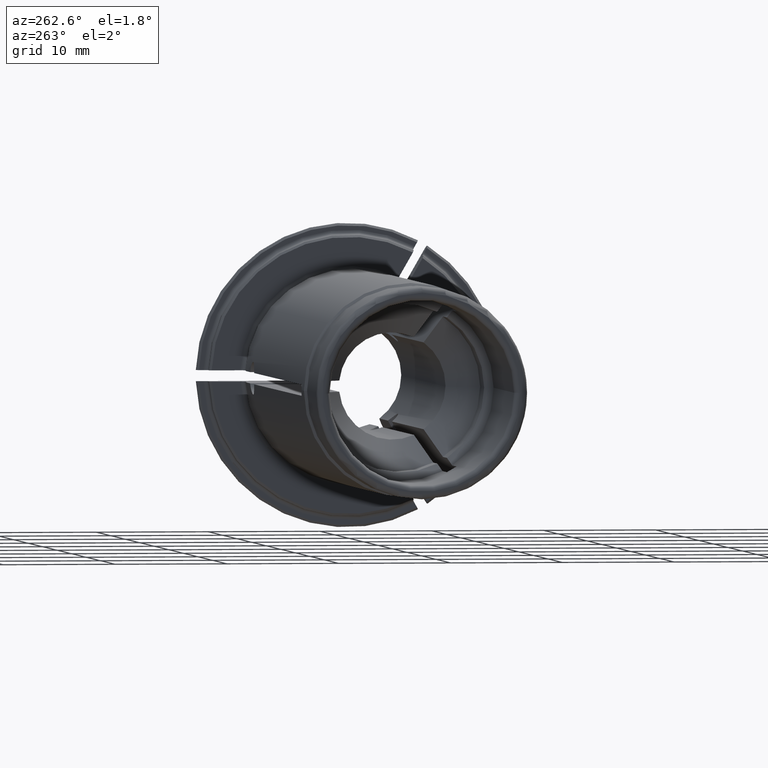
[diagram: clean part render]
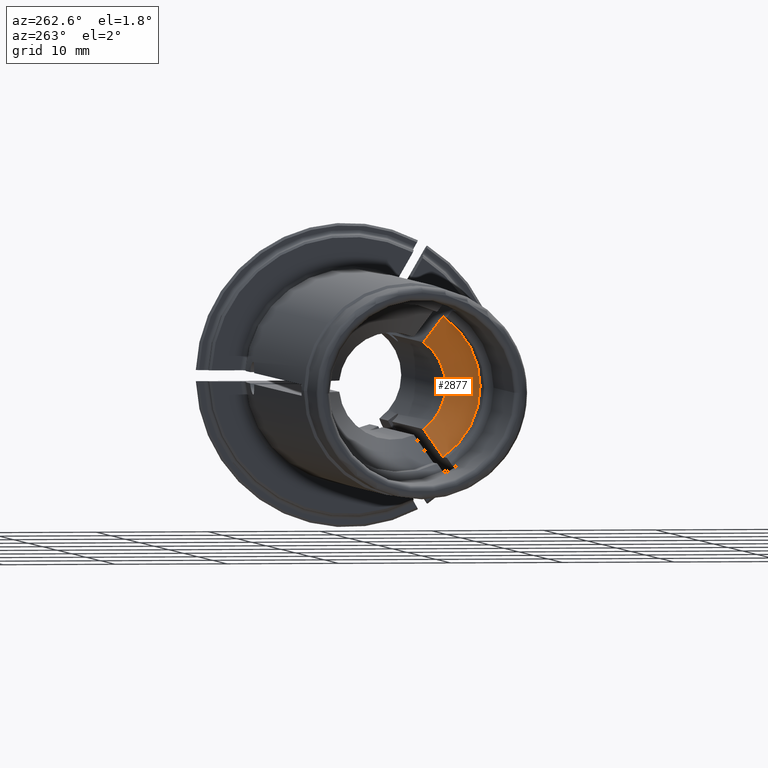
[diagram: same view with one face highlighted and labeled with its STEP entity id]
A machine part, auxiliary view. The second image highlights one B-rep face of the part: STEP entity #2877.
In plain terms, the highlighted conical surface has half-angle 45 deg.
Its self-contained STEP definition (entity closure, byte-faithful):
#186=CARTESIAN_POINT('',(-2.97625E1,0.E0,0.E0));
#187=DIRECTION('',(1.E0,0.E0,0.E0));
#188=DIRECTION('',(0.E0,-5.881581059140E-1,8.087459690457E-1));
#189=AXIS2_PLACEMENT_3D('',#186,#187,#188);
#1187=CARTESIAN_POINT('',(-3.25E1,-4.174670088666E0,-6.230740698408E0));
#1188=CARTESIAN_POINT('',(-3.217955302822E1,-4.014089359332E0,
-5.952606716485E0));
#1189=CARTESIAN_POINT('',(-3.154946335195E1,-3.698251371894E0,
-5.405559275283E0));
#1190=CARTESIAN_POINT('',(-3.063609465032E1,-3.240041514220E0,
-4.611916521262E0));
#1191=CARTESIAN_POINT('',(-3.004995493156E1,-2.945629153580E0,
-4.101979354256E0));
#1192=CARTESIAN_POINT('',(-2.97625E1,-2.801102979415E0,-3.851652677580E0));
#1194=CARTESIAN_POINT('',(-2.97625E1,-2.801102979415E0,3.851652677580E0));
#1195=CARTESIAN_POINT('',(-3.004994705004E1,-2.945625190923E0,
4.101972490733E0));
#1196=CARTESIAN_POINT('',(-3.063607624281E1,-3.240032273604E0,
4.611900516045E0));
#1197=CARTESIAN_POINT('',(-3.154944467411E1,-3.698242007344E0,
5.405543055405E0));
#1198=CARTESIAN_POINT('',(-3.217954502007E1,-4.014085346331E0,
5.952599765763E0));
#1199=CARTESIAN_POINT('',(-3.25E1,-4.174670088666E0,6.230740698408E0));
#1232=CARTESIAN_POINT('',(-3.25E1,0.E0,0.E0));
#1233=DIRECTION('',(-1.E0,0.E0,0.E0));
#1234=DIRECTION('',(0.E0,-5.566226784888E-1,-8.307654264544E-1));
#1235=AXIS2_PLACEMENT_3D('',#1232,#1233,#1234);
#1740=VERTEX_POINT('',#1194);
#1741=VERTEX_POINT('',#1199);
#1832=VERTEX_POINT('',#1187);
#1833=VERTEX_POINT('',#1192);
#2864=CARTESIAN_POINT('',(-3.113125E1,0.E0,0.E0));
#2865=DIRECTION('',(-1.E0,0.E0,0.E0));
#2866=DIRECTION('',(0.E0,1.E0,0.E0));
#2867=AXIS2_PLACEMENT_3D('',#2864,#2865,#2866);
#2868=CONICAL_SURFACE('',#2867,6.13125E0,4.5E1);
#2869=ORIENTED_EDGE('',*,*,#2826,.T.);
#2870=ORIENTED_EDGE('',*,*,#2041,.F.);
#2872=ORIENTED_EDGE('',*,*,#2871,.T.);
#2874=ORIENTED_EDGE('',*,*,#2873,.F.);
#2875=EDGE_LOOP('',(#2869,#2870,#2872,#2874));
#2876=FACE_OUTER_BOUND('',#2875,.F.);
#2877=ADVANCED_FACE('',(#2876),#2868,.F.);
#190=CIRCLE('',#189,4.7625E0);
#1193=B_SPLINE_CURVE_WITH_KNOTS('',3,(#1187,#1188,#1189,#1190,#1191,#1192),
.UNSPECIFIED.,.F.,.F.,(4,1,1,4),(0.E0,3.333333333333E-1,6.666666666667E-1,1.E0),
.UNSPECIFIED.);
#1200=B_SPLINE_CURVE_WITH_KNOTS('',3,(#1194,#1195,#1196,#1197,#1198,#1199),
.UNSPECIFIED.,.F.,.F.,(4,1,1,4),(0.E0,3.333333333333E-1,6.666666666667E-1,1.E0),
.UNSPECIFIED.);
#1236=CIRCLE('',#1235,7.5E0);
#2041=EDGE_CURVE('',#1740,#1833,#190,.T.);
#2826=EDGE_CURVE('',#1832,#1833,#1193,.T.);
#2871=EDGE_CURVE('',#1740,#1741,#1200,.T.);
#2873=EDGE_CURVE('',#1832,#1741,#1236,.T.);